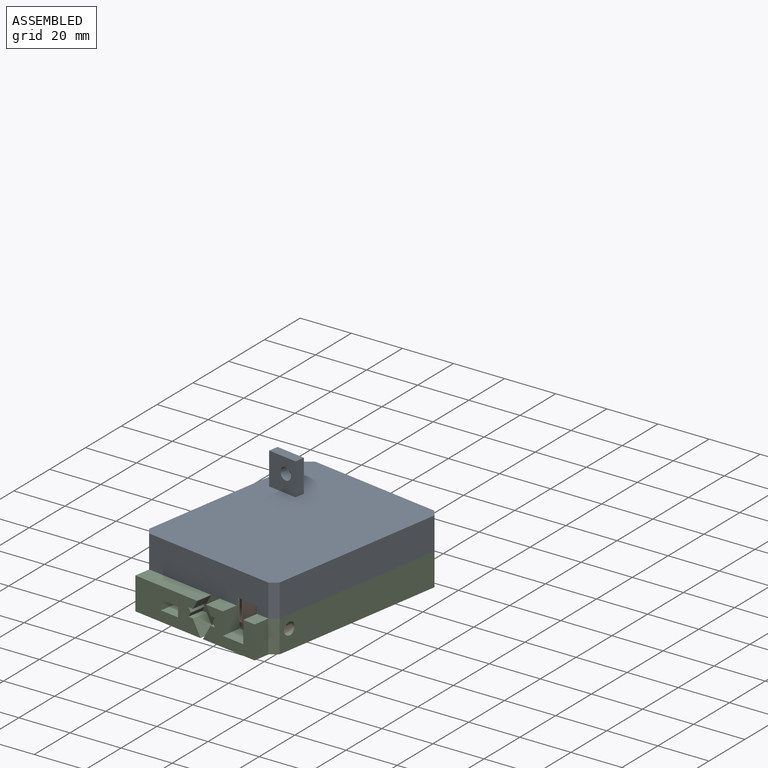
[diagram: assembled view]
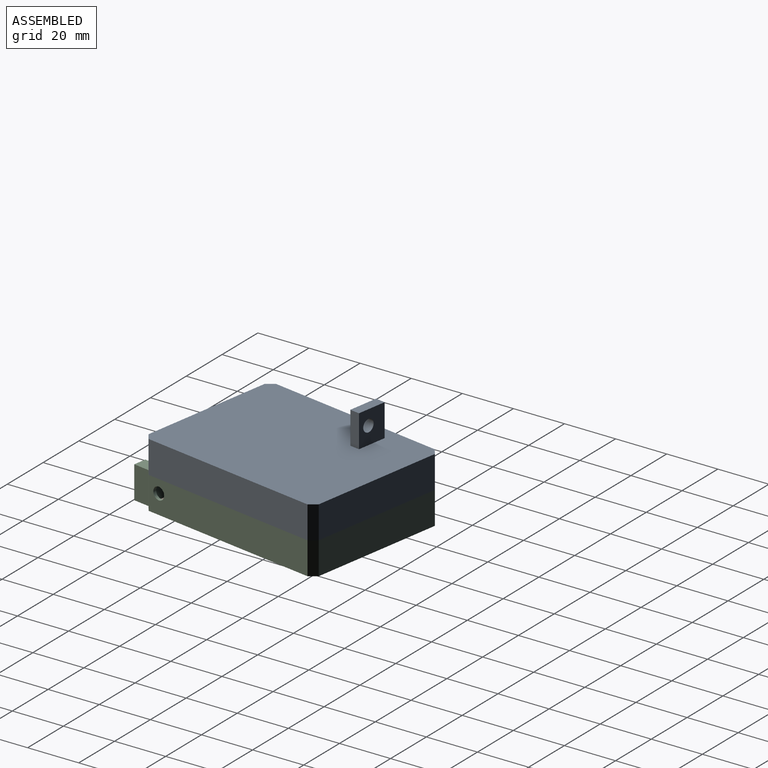
[diagram: assembled view, second angle]
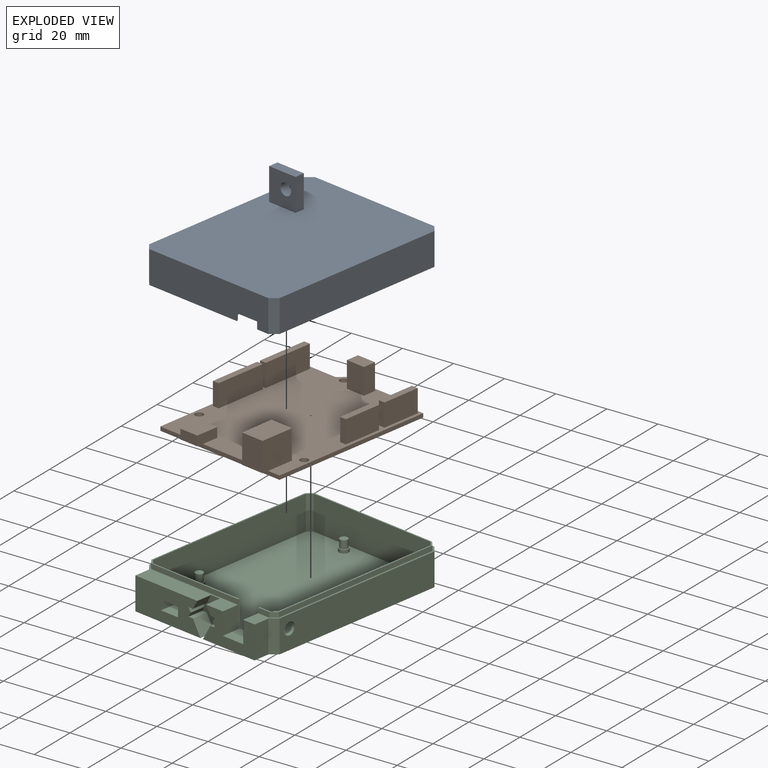
[diagram: exploded view]
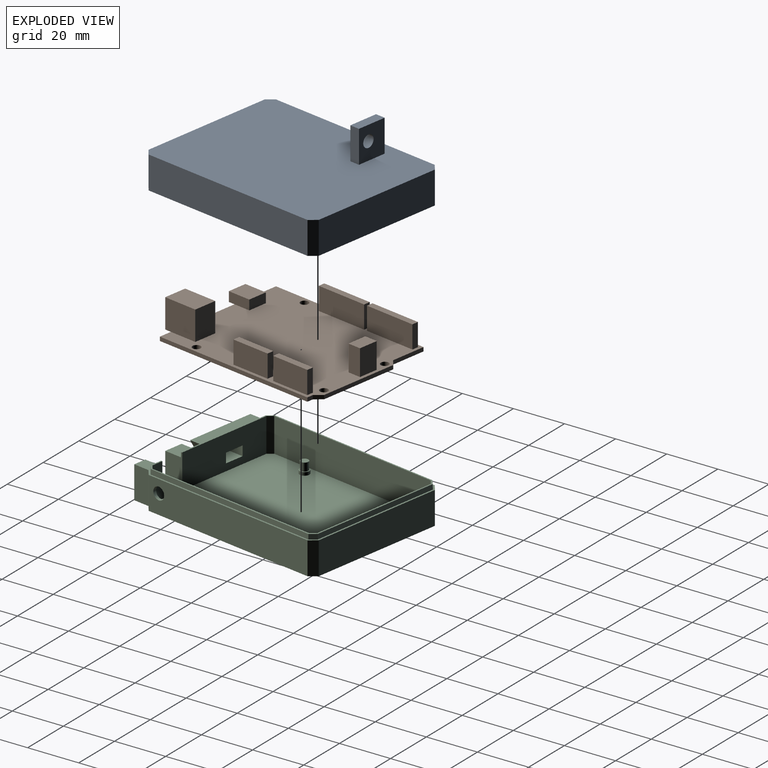
[diagram: exploded view, second angle]
ASSEMBLY  parts=3 mates=6
PART A: 38 faces, bbox 76.2x58.4x25.4 mm
  f0: plane 76.2x58.42mm, normal (0,0,1), area 4393.3mm2, adj f4,f5,f6,f7,f8,f9,f10,f11
  f1: plane 76.2x58.42mm, normal (0,0,-1), area 128.3mm2, adj f3,f4,f5,f6,f7,f8,f9,f10
  f2: plane 74.97x57.19mm, normal (0,0,-1), area 162.5mm2, adj f3,f12,f13,f14,f15,f16,f17,f18
  f3: plane 38.91x2.03mm, normal (1,0,-0.05), area 79.1mm2, adj f1,f2,f13,f29
  f4: plane 53.34x12.7mm, normal (1,0,0), area 677.4mm2, adj f0,f1,f9,f10
  f5: plane 71.12x12.7mm, normal (0,1,0), area 903.2mm2, adj f0,f1,f8,f9
  f6: plane 53.34x12.7mm, normal (-1,0,0), area 651.9mm2, adj f0,f1,f8,f11,f29,f30,f31
  f7: plane 71.12x12.7mm, normal (0,-1,0), area 903.2mm2, adj f0,f1,f10,f11
  f8: plane 12.7x2.54mm, normal (-0.71,0.71,0), area 45.6mm2, adj f0,f1,f5,f6
  f9: plane 12.7x2.54mm, normal (0.71,0.71,0), area 45.6mm2, adj f0,f1,f4,f5
  f10: plane 12.7x2.54mm, normal (0.71,-0.71,0), area 45.6mm2, adj f0,f1,f4,f7
  f11: plane 12.7x2.54mm, normal (-0.71,-0.71,0), area 45.6mm2, adj f0,f1,f6,f7
  f12: plane 4.87x2.03mm, normal (1,0,-0.05), area 9.9mm2, adj f1,f2,f19,f30
  f13: plane 2.29x2.29mm, normal (0.71,-0.71,-0.05), area 6.4mm2, adj f1,f2,f3,f14
  f14: plane 70.7x2.03mm, normal (0,-1,-0.05), area 143.8mm2, adj f1,f2,f13,f15
  f15: plane 2.29x2.29mm, normal (-0.71,-0.71,-0.05), area 6.4mm2, adj f1,f2,f14,f16
  f16: plane 52.92x2.03mm, normal (-1,0,-0.05), area 107.6mm2, adj f1,f2,f15,f17
  f17: plane 2.29x2.29mm, normal (-0.71,0.71,-0.05), area 6.4mm2, adj f1,f2,f16,f18
  f18: plane 70.7x2.03mm, normal (0,1,-0.05), area 143.8mm2, adj f1,f2,f17,f19
  f19: plane 2.29x2.29mm, normal (0.71,0.71,-0.05), area 6.4mm2, adj f1,f2,f12,f18
  f20: plane 73.66x55.88mm, normal (0,0,-1), area 4109.7mm2, adj f21,f22,f23,f24,f25,f26,f27,f28
  f21: plane 9.4x1.8mm, normal (-0.71,-0.71,0), area 23.9mm2, adj f2,f20,f27,f28
  f22: plane 9.4x1.8mm, normal (0.71,-0.71,0), area 23.9mm2, adj f2,f20,f26,f27
  f23: plane 9.4x1.8mm, normal (-0.71,0.71,0), area 23.9mm2, adj f2,f20,f25,f28
  f24: plane 9.4x1.8mm, normal (0.71,0.71,0), area 23.9mm2, adj f2,f20,f25,f26
  f25: plane 70.07x9.4mm, normal (0,1,0), area 658.5mm2, adj f2,f20,f23,f24
  f26: plane 52.29x9.4mm, normal (1,0,0), area 484.4mm2, adj f2,f20,f22,f24,f29,f30,f31
  f27: plane 70.07x9.4mm, normal (0,-1,0), area 658.5mm2, adj f2,f20,f21,f22
  f28: plane 52.29x9.4mm, normal (-1,0,0), area 491.4mm2, adj f2,f20,f21,f23
  f29: plane 2.79x1.27mm, normal (0,-1,0), area 2.1mm2, adj f1,f2,f3,f6,f26,f31
  f30: plane 2.79x1.27mm, normal (0,1,0), area 2.1mm2, adj f1,f2,f6,f12,f26,f31
  f31: plane 9.14x1.27mm, normal (0,0,-1), area 11.6mm2, adj f6,f26,f29,f30
  f32: plane 12.7x11.8mm, normal (-1,0,0), area 132.2mm2, adj f0,f33,f35,f36,f37
  f33: plane 12.7x3.85mm, normal (0,-1,0), area 48.9mm2, adj f0,f32,f34,f36
  f34: plane 12.7x11.8mm, normal (1,0,0), area 132.2mm2, adj f0,f33,f35,f36,f37
  f35: plane 12.7x3.85mm, normal (0,1,0), area 48.9mm2, adj f0,f32,f34,f36
  f36: plane 11.8x3.85mm, normal (0,0,1), area 45.4mm2, adj f32,f33,f34,f35
  f37: cylinder r=2.37mm len=4.74mm, axis (1,0,0), area 57.3mm2, adj f32,f34
PART B: 51 faces, bbox 71.1x53.3x13 mm
  f0: plane 68.58x53.34mm, normal (0,0,1), area 3208.5mm2, adj f1,f3,f4,f5,f6,f7,f8,f9
  f1: plane 31.75x1.52mm, normal (1,0,0), area 48.4mm2, adj f0,f2,f10,f13
  f2: plane 68.58x53.34mm, normal (0,0,-1), area 3578mm2, adj f1,f3,f4,f5,f6,f7,f8,f9
  f3: plane 66.04x1.52mm, normal (0,1,0), area 100.6mm2, adj f0,f2,f4,f12
  f4: plane 53.34x1.52mm, normal (-1,0,0), area 81.3mm2, adj f0,f2,f3,f5,f39,f45
  f5: plane 66.04x1.52mm, normal (0,-1,0), area 100.6mm2, adj f0,f2,f4,f11
  f6: cylinder r=1.59mm len=3.18mm, axis (0,0,1), area 15.2mm2, adj f0,f2
  f7: cylinder r=1.59mm len=3.18mm, axis (0,0,1), area 15.2mm2, adj f0,f2
  f8: cylinder r=1.59mm len=3.18mm, axis (0,0,1), area 15.2mm2, adj f0,f2
  f9: cylinder r=1.59mm len=3.18mm, axis (0,0,1), area 15.2mm2, adj f0,f2
  f10: plane 2.54x2.54mm, normal (0.71,-0.71,0), area 5.5mm2, adj f0,f1,f2,f11
  f11: plane 2.54x1.52mm, normal (1,0,0), area 3.9mm2, adj f0,f2,f5,f10
  f12: plane 13.97x1.52mm, normal (1,0,0), area 21.3mm2, adj f0,f2,f3,f13
  f13: plane 2.54x2.54mm, normal (0.71,0.71,0), area 5.5mm2, adj f0,f1,f2,f12
  f14: plane 8.89x2.54mm, normal (-1,0,0), area 22.6mm2, adj f0,f15,f17,f18
  f15: plane 20.32x8.89mm, normal (0,-1,0), area 180.6mm2, adj f0,f14,f16,f18
  f16: plane 8.89x2.54mm, normal (1,0,0), area 22.6mm2, adj f0,f15,f17,f18
  f17: plane 20.32x8.89mm, normal (0,1,0), area 180.6mm2, adj f0,f14,f16,f18
  f18: plane 20.32x2.54mm, normal (0,0,1), area 51.6mm2, adj f14,f15,f16,f17
  f19: plane 8.89x2.54mm, normal (-1,0,0), area 22.6mm2, adj f0,f20,f22,f23
  f20: plane 20.32x8.89mm, normal (0,-1,0), area 180.6mm2, adj f0,f19,f21,f23
  f21: plane 8.89x2.54mm, normal (1,0,0), area 22.6mm2, adj f0,f20,f22,f23
  f22: plane 20.32x8.89mm, normal (0,1,0), area 180.6mm2, adj f0,f19,f21,f23
  f23: plane 20.32x2.54mm, normal (0,0,1), area 51.6mm2, adj f19,f20,f21,f22
  f24: plane 8.89x2.54mm, normal (-1,0,0), area 22.6mm2, adj f0,f25,f27,f28
  f25: plane 15.24x8.89mm, normal (0,-1,0), area 135.5mm2, adj f0,f24,f26,f28
  f26: plane 8.89x2.54mm, normal (1,0,0), area 22.6mm2, adj f0,f25,f27,f28
  f27: plane 15.24x8.89mm, normal (0,1,0), area 135.5mm2, adj f0,f24,f26,f28
  f28: plane 15.24x2.54mm, normal (0,0,1), area 38.7mm2, adj f24,f25,f26,f27
  f29: plane 8.89x2.54mm, normal (-1,0,0), area 22.6mm2, adj f0,f30,f32,f33
  f30: plane 15.24x8.89mm, normal (0,-1,0), area 135.5mm2, adj f0,f29,f31,f33
  f31: plane 8.89x2.54mm, normal (1,0,0), area 22.6mm2, adj f0,f30,f32,f33
  f32: plane 15.24x8.89mm, normal (0,1,0), area 135.5mm2, adj f0,f29,f31,f33
  f33: plane 15.24x2.54mm, normal (0,0,1), area 38.7mm2, adj f29,f30,f31,f32
  f34: plane 9.14x3.81mm, normal (0,1,0), area 34.8mm2, adj f0,f35,f37,f38,f39
  f35: plane 7.62x3.81mm, normal (-1,0,0), area 29mm2, adj f34,f36,f38,f39
  f36: plane 9.14x3.81mm, normal (0,-1,0), area 34.8mm2, adj f0,f35,f37,f38,f39
  f37: plane 7.62x3.81mm, normal (1,0,0), area 29mm2, adj f0,f34,f36,f38
  f38: plane 9.14x7.62mm, normal (0,0,1), area 69.7mm2, adj f34,f35,f36,f37
  f39: plane 7.62x2.54mm, normal (0,0,-1), area 19.4mm2, adj f4,f34,f35,f36
  f40: plane 13.46x11.43mm, normal (0,1,0), area 153.9mm2, adj f0,f41,f43,f44,f45
  f41: plane 11.43x9.14mm, normal (-1,0,0), area 104.5mm2, adj f40,f42,f44,f45
  f42: plane 13.46x11.43mm, normal (0,-1,0), area 153.9mm2, adj f0,f41,f43,f44,f45
  f43: plane 11.43x9.14mm, normal (1,0,0), area 104.5mm2, adj f0,f40,f42,f44
  f44: plane 13.46x9.14mm, normal (0,0,1), area 123.1mm2, adj f40,f41,f42,f43
  f45: plane 9.14x2.54mm, normal (0,0,-1), area 23.2mm2, adj f4,f40,f41,f42
  f46: plane 10.16x5.08mm, normal (0,1,0), area 51.6mm2, adj f0,f47,f49,f50
  f47: plane 10.16x7.62mm, normal (-1,0,0), area 77.4mm2, adj f0,f46,f48,f50
  f48: plane 10.16x5.08mm, normal (0,-1,0), area 51.6mm2, adj f0,f47,f49,f50
  f49: plane 10.16x7.62mm, normal (1,0,0), area 77.4mm2, adj f0,f46,f48,f50
  f50: plane 7.62x5.08mm, normal (0,0,1), area 38.7mm2, adj f46,f47,f48,f49
PART C: 69 faces, bbox 82.6x58.4x14.6 mm
  f0: plane 12.7x11.82mm, normal (-1,0,0), area 83.6mm2, adj f3,f5,f53,f54,f55,f56,f57,f59
  f1: plane 52.29x13.34mm, normal (1,0,0), area 571.8mm2, adj f2,f21,f22,f23,f45,f46,f47,f48
  f2: plane 74.73x56.95mm, normal (0,0,1), area 132.5mm2, adj f1,f4,f13,f14,f15,f16,f17,f18
  f3: plane 82.55x58.42mm, normal (0,0,1), area 416mm2, adj f0,f4,f6,f7,f8,f9,f10,f11
  f4: plane 38.85x1.91mm, normal (-1,0,0.05), area 74.1mm2, adj f2,f3,f13,f45
  f5: plane 82.55x58.42mm, normal (0,0,-1), area 4770.2mm2, adj f0,f6,f7,f8,f9,f10,f11,f12
  f6: plane 12.7x2.54mm, normal (-0.71,-0.71,0), area 45.6mm2, adj f3,f5,f8,f67
  f7: plane 12.7x2.54mm, normal (0.71,-0.71,0), area 45.6mm2, adj f3,f5,f8,f12
  f8: plane 71.12x12.7mm, normal (0,-1,0), area 885mm2, adj f3,f5,f6,f7,f52
  f9: plane 12.7x2.54mm, normal (-0.71,0.71,0), area 45.6mm2, adj f3,f5,f11,f58
  f10: plane 12.7x2.54mm, normal (0.71,0.71,0), area 45.6mm2, adj f3,f5,f11,f12
  f11: plane 71.12x12.7mm, normal (0,1,0), area 903.2mm2, adj f3,f5,f9,f10
  f12: plane 53.34x12.7mm, normal (1,0,0), area 677.4mm2, adj f3,f5,f7,f10
  f13: plane 2.21x2.21mm, normal (-0.71,0.71,0.05), area 5.8mm2, adj f2,f3,f4,f20
  f14: plane 4.82x1.91mm, normal (-1,0,0.05), area 9.1mm2, adj f2,f3,f15,f46
  f15: plane 2.21x2.21mm, normal (-0.71,-0.71,0.05), area 5.8mm2, adj f2,f3,f14,f16
  f16: plane 70.59x1.91mm, normal (0,-1,0.05), area 134.6mm2, adj f2,f3,f15,f17
  f17: plane 2.21x2.21mm, normal (0.71,-0.71,0.05), area 5.8mm2, adj f2,f3,f16,f18
  f18: plane 52.81x1.91mm, normal (1,0,0.05), area 100.7mm2, adj f2,f3,f17,f19
  f19: plane 2.21x2.21mm, normal (0.71,0.71,0.05), area 5.8mm2, adj f2,f3,f18,f20
  f20: plane 70.59x1.91mm, normal (0,1,0.05), area 134.6mm2, adj f2,f3,f13,f19
  f21: plane 73.66x55.88mm, normal (0,0,1), area 4064.1mm2, adj f1,f22,f23,f24,f25,f26,f27,f28
  f22: plane 13.34x1.8mm, normal (0.71,-0.71,0), area 33.9mm2, adj f1,f2,f21,f28
  f23: plane 13.34x1.8mm, normal (0.71,0.71,0), area 33.9mm2, adj f1,f2,f21,f24
  f24: plane 70.07x13.34mm, normal (0,1,0), area 916.1mm2, adj f2,f21,f23,f25,f52
  f25: plane 13.34x1.8mm, normal (-0.71,0.71,0), area 33.9mm2, adj f2,f21,f24,f26
  f26: plane 52.29x13.34mm, normal (-1,0,0), area 697.3mm2, adj f2,f21,f25,f27
  f27: plane 13.34x1.8mm, normal (-0.71,-0.71,0), area 33.9mm2, adj f2,f21,f26,f28
  f28: plane 70.07x13.34mm, normal (0,-1,0), area 934.4mm2, adj f2,f21,f22,f27
  f29: cylinder r=1.91mm len=3.81mm, axis (0,0,-1), area 15.2mm2, adj f21,f30
  f30: plane 3.81x3.81mm, normal (0,0,1), area 4.1mm2, adj f29,f37
  f31: cylinder r=1.91mm len=3.81mm, axis (0,0,-1), area 15.2mm2, adj f21,f32
  f32: plane 3.81x3.81mm, normal (0,0,1), area 4.1mm2, adj f31,f39
  f33: cylinder r=1.91mm len=3.81mm, axis (0,0,-1), area 15.2mm2, adj f21,f34
  f34: plane 3.81x3.81mm, normal (0,0,1), area 4.1mm2, adj f33,f41
  f35: cylinder r=1.91mm len=3.81mm, axis (0,0,-1), area 15.2mm2, adj f21,f36
  f36: plane 3.81x3.81mm, normal (0,0,1), area 4.1mm2, adj f35,f43
  f37: cylinder r=1.52mm len=3.18mm, axis (0,0,-1), area 30.4mm2, adj f30,f38
  f38: plane 3.05x3.05mm, normal (0,0,1), area 7.3mm2, adj f37
  f39: cylinder r=1.52mm len=3.18mm, axis (0,0,-1), area 30.4mm2, adj f32,f40
  f40: plane 3.05x3.05mm, normal (0,0,1), area 7.3mm2, adj f39
  f41: cylinder r=1.52mm len=3.18mm, axis (0,0,-1), area 30.4mm2, adj f34,f42
  f42: plane 3.05x3.05mm, normal (0,0,1), area 7.3mm2, adj f41
  f43: cylinder r=1.52mm len=3.18mm, axis (0,0,-1), area 30.4mm2, adj f36,f44
  f44: plane 3.05x3.05mm, normal (0,0,1), area 7.3mm2, adj f43
  f45: plane 10.54x7.62mm, normal (0,-1,0), area 66.9mm2, adj f1,f2,f3,f4,f47,f68
  f46: plane 10.54x7.62mm, normal (0,1,0), area 66.9mm2, adj f1,f2,f3,f14,f47,f68
  f47: plane 9.14x7.62mm, normal (0,0,1), area 69.7mm2, adj f1,f45,f46,f68
  f48: plane 7.62x7.62mm, normal (0,0,-1), area 58.1mm2, adj f1,f49,f51,f60
  f49: plane 7.62x3.81mm, normal (0,-1,0), area 29mm2, adj f1,f48,f50,f60
  f50: plane 7.62x7.62mm, normal (0,0,1), area 58.1mm2, adj f1,f49,f51,f60
  f51: plane 7.62x3.81mm, normal (0,1,0), area 29mm2, adj f1,f48,f50,f60
  f52: cylinder r=2.41mm len=4.82mm, axis (0,-1,0), area 19.2mm2, adj f8,f24
  f53: plane 6.35x1.97mm, normal (0,0,1), area 12.5mm2, adj f0,f54,f59,f60
  f54: plane 6.35x1.71mm, normal (0,-0.87,-0.5), area 12.5mm2, adj f0,f53,f55,f60
  f55: plane 6.35x1.71mm, normal (0,-0.87,0.5), area 12.5mm2, adj f0,f54,f56,f60
  f56: plane 6.35x1.97mm, normal (0,0,-1), area 12.5mm2, adj f0,f55,f57,f60
  f57: plane 6.35x3.45mm, normal (0,-0.87,-0.5), area 25.3mm2, adj f0,f3,f56,f60
  f58: plane 12.7x6.35mm, normal (0,1,0), area 80.6mm2, adj f3,f5,f9,f60
  f59: plane 6.35x5.84mm, normal (0,-0.87,0.5), area 42.8mm2, adj f0,f5,f53,f60
  f60: plane 29.09x12.7mm, normal (-1,0,0), area 305.9mm2, adj f3,f5,f48,f49,f50,f51,f53,f54
  f61: plane 6.35x3.45mm, normal (0,0.87,-0.5), area 25.3mm2, adj f0,f3,f62,f68
  f62: plane 6.35x1.97mm, normal (0,0,-1), area 12.5mm2, adj f0,f61,f63,f68
  f63: plane 6.35x1.71mm, normal (0,0.87,0.5), area 12.5mm2, adj f0,f62,f64,f68
  f64: plane 6.35x1.71mm, normal (0,0.87,-0.5), area 12.5mm2, adj f0,f63,f65,f68
  f65: plane 6.35x1.97mm, normal (0,0,1), area 12.5mm2, adj f0,f64,f66,f68
  f66: plane 6.35x5.84mm, normal (0,0.87,0.5), area 42.8mm2, adj f0,f5,f65,f68
  f67: plane 12.7x6.35mm, normal (0,-1,0), area 80.6mm2, adj f3,f5,f6,f68
  f68: plane 23.11x12.7mm, normal (-1,0,0), area 180mm2, adj f3,f5,f45,f46,f47,f61,f62,f63
PLACE A rot(axis=(0,0,1),80.7deg) t=(-18.07,132.65,-41.81)mm
PLACE B rot(axis=(0,0,1),80.7deg) t=(2.93,95.76,-51.97)mm
PLACE C rot(axis=(0,0,1),80.7deg) t=(-18.07,132.65,-41.81)mm
MATE planar C.f0 <-> A.f6  axis (-0.16,-0.99,0) through (-21.26,94.56,-47.41)mm
MATE cylindrical B.f8 <-> C.f35  axis (0,0,1) through (6.05,162.17,-50.45)mm
MATE planar A.f1 <-> C.f3  axis (0,0,-1) through (-18.46,134.1,-41.81)mm
MATE planar B.f2 <-> C.f29  axis (0,0,-1) through (-17.83,133.39,-51.97)mm
MATE planar C.f11 <-> A.f5  axis (-0.99,0.16,0) through (-46.9,137.35,-48.16)mm
MATE cylindrical B.f9 <-> C.f29  axis (0,0,1) through (-44.75,118.99,-51.21)mm
